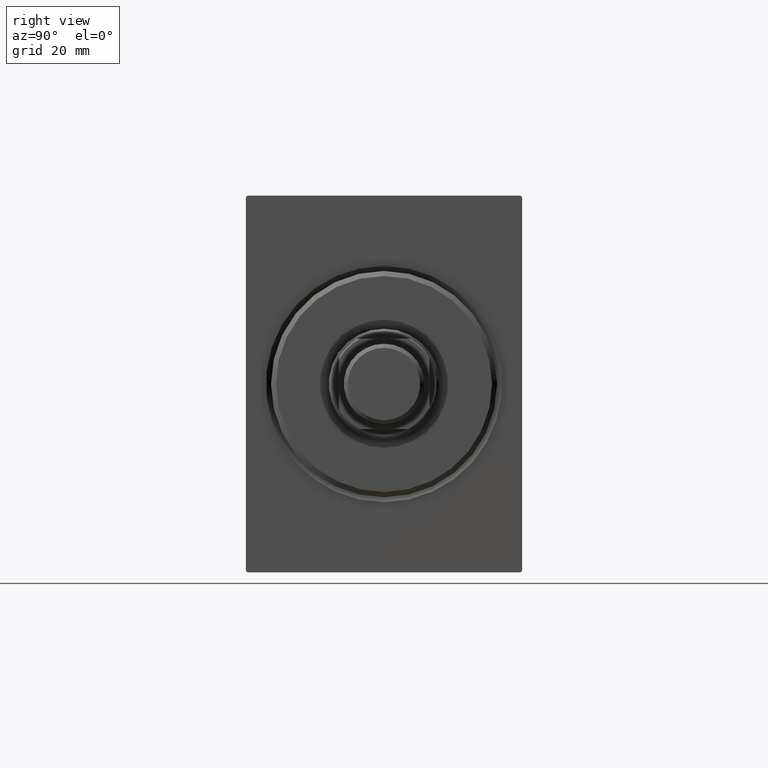
[diagram: clean part render]
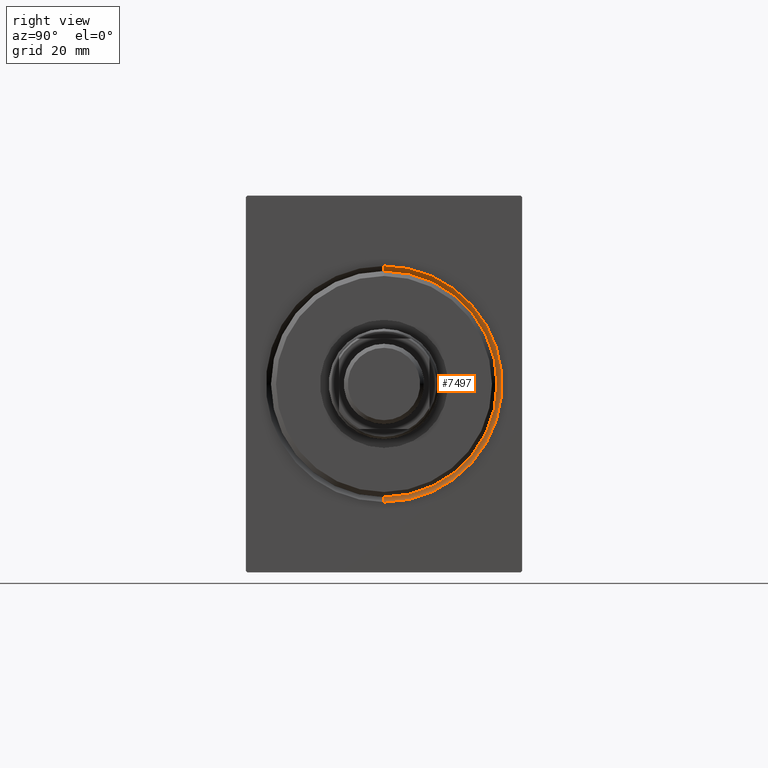
[diagram: same view with one face highlighted and labeled with its STEP entity id]
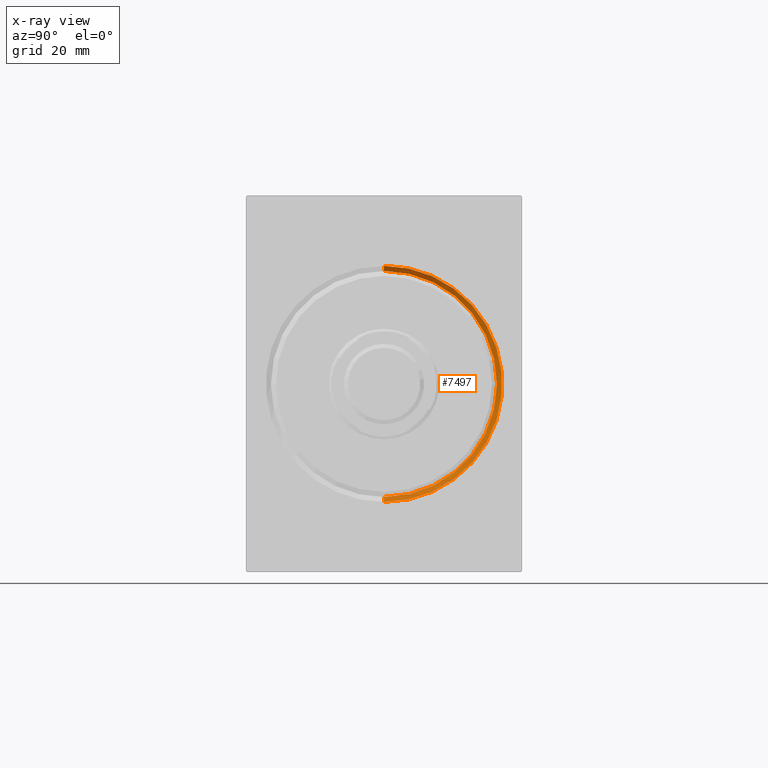
[diagram: x-ray of the same camera — body ghosted, the highlighted face saturated]
A machine part, right view. The second image highlights one B-rep face of the part: STEP entity #7497.
The next image is the same camera in x-ray: the body ghosted, the highlighted face saturated — about 0% of this face is hidden behind the body in this view.
In plain terms, the highlighted conical surface has half-angle 45 deg.
Its self-contained STEP definition (entity closure, byte-faithful):
#328 = AXIS2_PLACEMENT_3D ( 'NONE', #901, #8067, #17183 ) ;
#901 = CARTESIAN_POINT ( 'NONE',  ( 1.000000000000000888, 0.000000000000000000, 0.000000000000000000 ) ) ;
#952 = DIRECTION ( 'NONE',  ( 0.000000000000000000, 0.000000000000000000, -1.000000000000000000 ) ) ;
#1758 = CIRCLE ( 'NONE', #41282, 22.50000000000000355 ) ;
#2480 = DIRECTION ( 'NONE',  ( -0.7071067811865474617, 0.000000000000000000, 0.7071067811865474617 ) ) ;
#3636 = CARTESIAN_POINT ( 'NONE',  ( 1.000000000000000888, 2.755455298081545172E-15, -22.50000000000000355 ) ) ;
#5999 = VERTEX_POINT ( 'NONE', #18124 ) ;
#6651 = CARTESIAN_POINT ( 'NONE',  ( 0.000000000000000000, 0.000000000000000000, 23.50000000000000355 ) ) ;
#7497 = ADVANCED_FACE ( 'NONE', ( #7638 ), #30137, .F. ) ;
#7638 = FACE_OUTER_BOUND ( 'NONE', #37115, .T. ) ;
#7830 = AXIS2_PLACEMENT_3D ( 'NONE', #20782, #11008, #11654 ) ;
#8067 = DIRECTION ( 'NONE',  ( -1.000000000000000000, 0.000000000000000000, 0.000000000000000000 ) ) ;
#8751 = ORIENTED_EDGE ( 'NONE', *, *, #30557, .F. ) ;
#9824 = LINE ( 'NONE', #36530, #17396 ) ;
#10078 = EDGE_CURVE ( 'NONE', #30456, #5999, #1758, .T. ) ;
#11008 = DIRECTION ( 'NONE',  ( 1.000000000000000000, 0.000000000000000000, 0.000000000000000000 ) ) ;
#11654 = DIRECTION ( 'NONE',  ( 0.000000000000000000, 0.000000000000000000, -1.000000000000000000 ) ) ;
#12256 = CARTESIAN_POINT ( 'NONE',  ( 1.000000000000000888, 0.000000000000000000, 22.50000000000000355 ) ) ;
#15709 = DIRECTION ( 'NONE',  ( -0.7071067811865474617, 8.659560562354932858E-17, -0.7071067811865474617 ) ) ;
#15740 = CARTESIAN_POINT ( 'NONE',  ( 1.000000000000000888, 0.000000000000000000, 0.000000000000000000 ) ) ;
#17183 = DIRECTION ( 'NONE',  ( 0.000000000000000000, 0.000000000000000000, 1.000000000000000000 ) ) ;
#17396 = VECTOR ( 'NONE', #15709, 1000.000000000000114 ) ;
#18124 = CARTESIAN_POINT ( 'NONE',  ( 1.000000000000000888, 0.000000000000000000, 22.50000000000000355 ) ) ;
#20782 = CARTESIAN_POINT ( 'NONE',  ( 0.000000000000000000, 0.000000000000000000, 0.000000000000000000 ) ) ;
#24561 = ORIENTED_EDGE ( 'NONE', *, *, #38080, .F. ) ;
#27423 = VERTEX_POINT ( 'NONE', #6651 ) ;
#27473 = EDGE_CURVE ( 'NONE', #30456, #38696, #9824, .T. ) ;
#27968 = VECTOR ( 'NONE', #2480, 1000.000000000000114 ) ;
#28524 = ORIENTED_EDGE ( 'NONE', *, *, #10078, .F. ) ;
#28990 = DIRECTION ( 'NONE',  ( -1.000000000000000000, 0.000000000000000000, 0.000000000000000000 ) ) ;
#30137 = CONICAL_SURFACE ( 'NONE', #328, 22.50000000000000355, 0.7853981633974482790 ) ;
#30456 = VERTEX_POINT ( 'NONE', #3636 ) ;
#30557 = EDGE_CURVE ( 'NONE', #27423, #38696, #31387, .T. ) ;
#31387 = CIRCLE ( 'NONE', #7830, 23.50000000000000355 ) ;
#34480 = ORIENTED_EDGE ( 'NONE', *, *, #27473, .T. ) ;
#36530 = CARTESIAN_POINT ( 'NONE',  ( 1.000000000000000888, 2.755455298081545172E-15, -22.50000000000000355 ) ) ;
#37115 = EDGE_LOOP ( 'NONE', ( #28524, #34480, #8751, #24561 ) ) ;
#38080 = EDGE_CURVE ( 'NONE', #5999, #27423, #42427, .T. ) ;
#38696 = VERTEX_POINT ( 'NONE', #40507 ) ;
#40507 = CARTESIAN_POINT ( 'NONE',  ( 0.000000000000000000, 2.877919977996280715E-15, -23.50000000000000355 ) ) ;
#41282 = AXIS2_PLACEMENT_3D ( 'NONE', #15740, #28990, #952 ) ;
#42427 = LINE ( 'NONE', #12256, #27968 ) ;